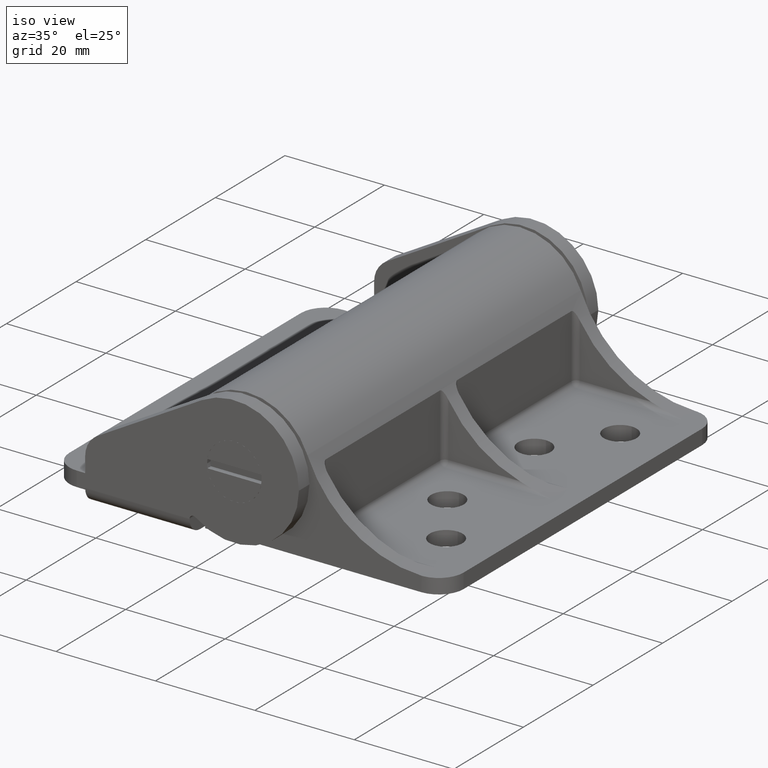
[diagram: clean part render]
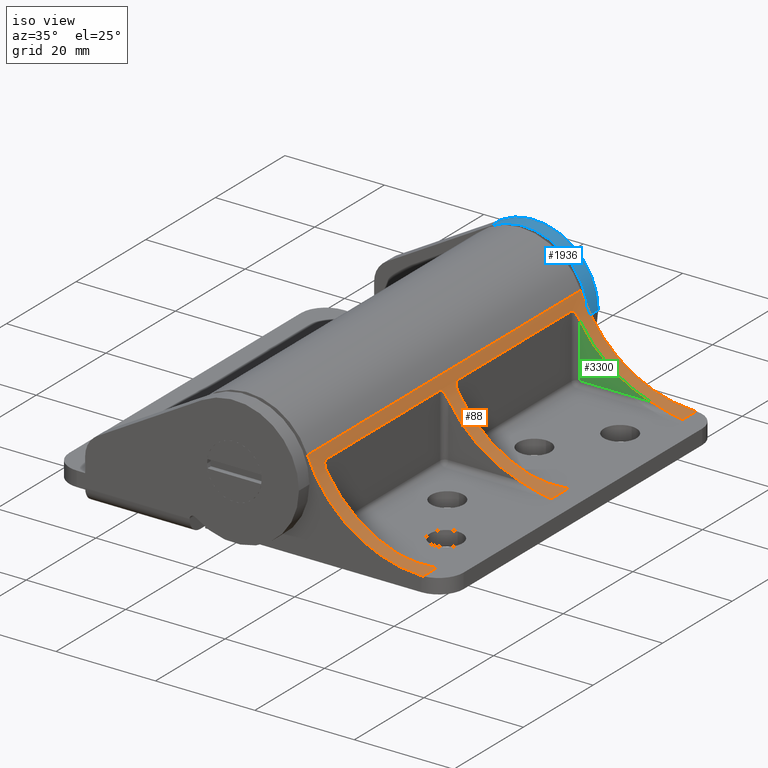
[diagram: same view with three faces highlighted in distinct colors, each labeled with its STEP entity id]
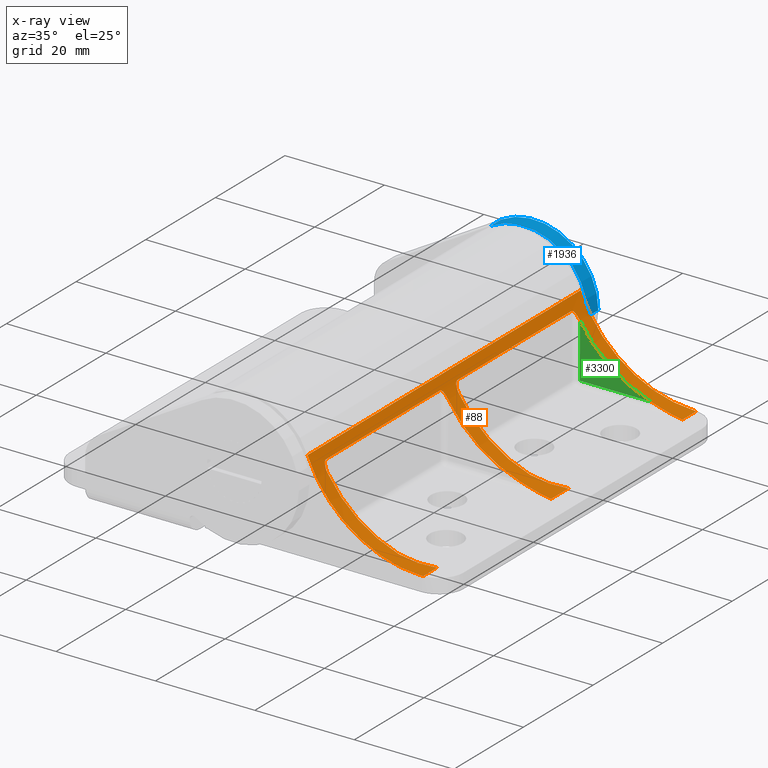
[diagram: x-ray of the same camera — body ghosted, the three highlighted faces saturated]
A machine part, iso view with three faces highlighted in distinct colors.
The next image is the same camera in x-ray (body ghosted, the three faces saturated) — at least one of them is partly hidden behind the body in this view.
Their STEP definitions:

[orange] entity #88 — the highlighted cylindrical surface (partial cylindrical patch) has radius 25 mm, axis along (0, 1, 0).
#88 = ADVANCED_FACE ( 'NONE', ( #2653 ), #1771, .F. ) ;
#92 = EDGE_CURVE ( 'NONE', #1486, #2445, #1863, .T. ) ;
#118 = LINE ( 'NONE', #2597, #3122 ) ;
#120 = VERTEX_POINT ( 'NONE', #2201 ) ;
#148 = CARTESIAN_POINT ( 'NONE',  ( 35.21814119484630400, 11.00000000000000000, 82.24643123524906200 ) ) ;
#151 = CARTESIAN_POINT ( 'NONE',  ( 12.99999999999999500, -2.752639040685594300, 78.30148547019008700 ) ) ;
#164 = CARTESIAN_POINT ( 'NONE',  ( 13.00416145184955000, -2.744369760921881300, 78.35354242055508700 ) ) ;
#180 = CARTESIAN_POINT ( 'NONE',  ( 13.01911376466994600, -2.714764249779078500, 78.45069290016549200 ) ) ;
#193 = CARTESIAN_POINT ( 'NONE',  ( 13.02980465692673900, -2.693631460906329900, 78.49648111798238400 ) ) ;
#200 = CARTESIAN_POINT ( 'NONE',  ( 13.06897118857324900, -2.616611433903037700, 78.62591639132229200 ) ) ;
#207 = CARTESIAN_POINT ( 'NONE',  ( 13.79022415671148000, -1.303302713814966200, 44.51648601581624800 ) ) ;
#214 = CARTESIAN_POINT ( 'NONE',  ( 13.10333938966908300, -2.549518011633630500, 78.69869715479623600 ) ) ;
#230 = CARTESIAN_POINT ( 'NONE',  ( 31.23414710852480200, 10.66972483356650900, 44.74684883297830900 ) ) ;
#232 = ORIENTED_EDGE ( 'NONE', *, *, #1478, .F. ) ;
#235 = B_SPLINE_CURVE_WITH_KNOTS ( 'NONE', 3,
 ( #2580, #3777, #2883, #1093, #3195, #1393, #3487, #1697 ),
 .UNSPECIFIED., .F., .F.,
 ( 4, 2, 2, 4 ),
 ( 0.0000000000000000000, 0.001797253634122010900, 0.003594507268244021900, 0.007189014536488068900 ),
 .UNSPECIFIED. ) ;
#241 = DIRECTION ( 'NONE',  ( 0.0000000000000000000, 0.0000000000000000000, 1.000000000000000000 ) ) ;
#247 = CARTESIAN_POINT ( 'NONE',  ( 33.86124982922083900, 10.95871239007347200, 45.20946450001608200 ) ) ;
#278 = CARTESIAN_POINT ( 'NONE',  ( 35.03471540923575800, 10.99999999999999800, 7.691534638846091500 ) ) ;
#280 = CARTESIAN_POINT ( 'NONE',  ( 13.06915791395835800, -2.616247208926815400, 7.373749517804936800 ) ) ;
#284 = ORIENTED_EDGE ( 'NONE', *, *, #570, .T. ) ;
#333 = B_SPLINE_CURVE_WITH_KNOTS ( 'NONE', 3,
 ( #541, #1939, #3741, #3263, #247, #1643, #1768, #230, #593, #463, #608, #3797 ),
 .UNSPECIFIED., .F., .F.,
 ( 4, 2, 2, 2, 2, 4 ),
 ( -3.162278256141180700E-005, 0.0008627288843650164400, 0.001757080551291444800, 0.003545783885144298400, 0.005334487218997151700, 0.007123190552850005100 ),
 .UNSPECIFIED. ) ;
#344 = CARTESIAN_POINT ( 'NONE',  ( 13.48871616763280600, -1.829349646153068500, 41.36724272160788700 ) ) ;
#444 = CARTESIAN_POINT ( 'NONE',  ( 13.21534665682276500, -2.333847621722291400, 78.88689612842732400 ) ) ;
#448 = B_SPLINE_CURVE_WITH_KNOTS ( 'NONE', 3,
 ( #766, #1385, #755, #777, #487, #467, #444, #214, #200, #193, #180, #164, #151, #1686 ),
 .UNSPECIFIED., .F., .F.,
 ( 4, 2, 2, 2, 2, 2, 4 ),
 ( 1.020821111656669100E-017, 0.0006117924539107866700, 0.001223584907821563100, 0.001835377361732339400, 0.002141273588687715300, 0.002294221702165402100, 0.002447169815643088600 ),
 .UNSPECIFIED. ) ;
#463 = CARTESIAN_POINT ( 'NONE',  ( 29.48324796470684800, 10.31473085671303400, 44.54057233073650200 ) ) ;
#467 = CARTESIAN_POINT ( 'NONE',  ( 13.30333147849510300, -2.168121468107721200, 78.97674940788115800 ) ) ;
#487 = CARTESIAN_POINT ( 'NONE',  ( 13.48860911120642200, -1.829542973002575600, 79.11717419793855300 ) ) ;
#494 = B_SPLINE_CURVE_WITH_KNOTS ( 'NONE', 3,
 ( #1826, #1218, #3006, #2116, #344, #2417, #645, #2722, #940, #3026, #1231, #3340 ),
 .UNSPECIFIED., .F., .F.,
 ( 4, 2, 2, 2, 2, 4 ),
 ( 1.020821111656669100E-017, 0.0006116877171230093900, 0.001223375434246008600, 0.001835063151369007900, 0.002140907009930508300, 0.002446750868492008500 ),
 .UNSPECIFIED. ) ;
#495 = VERTEX_POINT ( 'NONE', #1814 ) ;
#516 = CARTESIAN_POINT ( 'NONE',  ( 14.00000000000000000, -0.9555676417443239600, 44.50000000000000000 ) ) ;
#518 = CARTESIAN_POINT ( 'NONE',  ( 30.64993275112991000, 10.56584423403366400, 41.33628735988499900 ) ) ;
#541 = CARTESIAN_POINT ( 'NONE',  ( 35.32704350000000200, 11.00000000000000000, 45.50000000000000000 ) ) ;
#553 = CARTESIAN_POINT ( 'NONE',  ( 35.32704350000000200, 11.00000000000000000, -917.7500000000000000 ) ) ;
#570 = EDGE_CURVE ( 'NONE', #2738, #1322, #1479, .T. ) ;
#577 = CARTESIAN_POINT ( 'NONE',  ( 13.17853666059816900, -2.404730378601544600, 7.175044420196704700 ) ) ;
#593 = CARTESIAN_POINT ( 'NONE',  ( 30.64998219383678400, 10.56585395281621200, 44.66371878605460900 ) ) ;
#597 = CIRCLE ( 'NONE', #1995, 25.00000000000000000 ) ;
#605 = CARTESIAN_POINT ( 'NONE',  ( 35.32704350000000200, 11.00000000000000000, 7.750000000000000000 ) ) ;
#608 = CARTESIAN_POINT ( 'NONE',  ( 28.90374918756621300, 10.16820582554014700, 44.49999999999999300 ) ) ;
#615 = AXIS2_PLACEMENT_3D ( 'NONE', #1922, #3716, #1617 ) ;
#627 = EDGE_CURVE ( 'NONE', #1322, #120, #1418, .T. ) ;
#645 = CARTESIAN_POINT ( 'NONE',  ( 13.21557542212312700, -2.333425051034602000, 41.13695356058123300 ) ) ;
#673 = CARTESIAN_POINT ( 'NONE',  ( 35.32704350000000200, 11.00000000000000000, 3.760707209522820000 ) ) ;
#700 = VECTOR ( 'NONE', #241, 1000.000000000000000 ) ;
#717 = VECTOR ( 'NONE', #3143, 1000.000000000000000 ) ;
#755 = CARTESIAN_POINT ( 'NONE',  ( 13.78856304144120800, -1.306128199830202100, 79.23313504731268600 ) ) ;
#766 = CARTESIAN_POINT ( 'NONE',  ( 14.00000000000000000, -0.9555676417443239600, 79.25000000000000000 ) ) ;
#777 = CARTESIAN_POINT ( 'NONE',  ( 13.58694675402880100, -1.654607530796052400, 79.16686810648630500 ) ) ;
#788 = CARTESIAN_POINT ( 'NONE',  ( 13.00000000000000000, -2.752639040685680000, 45.50000000000000000 ) ) ;
#795 = VERTEX_POINT ( 'NONE', #848 ) ;
#802 = CARTESIAN_POINT ( 'NONE',  ( 13.01730376315634200, -2.718208871022964200, 45.29432801110989700 ) ) ;
#812 = AXIS2_PLACEMENT_3D ( 'NONE', #3729, #1040, #2531 ) ;
#832 = CARTESIAN_POINT ( 'NONE',  ( 13.00000000000000000, -2.752639040685680000, 45.50000000000000000 ) ) ;
#848 = CARTESIAN_POINT ( 'NONE',  ( 28.32704349999999800, 10.00000000000000000, 79.25000000000000000 ) ) ;
#872 = CARTESIAN_POINT ( 'NONE',  ( 13.30550304683896500, -2.165303388886262900, 7.027719999808277300 ) ) ;
#874 = B_SPLINE_CURVE_WITH_KNOTS ( 'NONE', 3,
 ( #788, #3775, #802, #2880, #1090, #3192, #1391, #3480, #1694, #3786, #1987, #207, #2289, #516 ),
 .UNSPECIFIED., .F., .F.,
 ( 4, 2, 2, 2, 2, 2, 4 ),
 ( 0.002447169815643105900, 0.002753971122191158300, 0.003060772428739210600, 0.003367573735287262500, 0.003674375041835315300, 0.004287977654931421700, 0.004901580268027529000 ),
 .UNSPECIFIED. ) ;
#908 = EDGE_CURVE ( 'NONE', #2211, #3024, #2312, .T. ) ;
#940 = CARTESIAN_POINT ( 'NONE',  ( 13.06944699228462900, -2.615680689699625200, 40.87702143906814500 ) ) ;
#978 = CARTESIAN_POINT ( 'NONE',  ( 13.00000000000000000, -2.752639040685689800, -917.7500000000000000 ) ) ;
#987 = ORIENTED_EDGE ( 'NONE', *, *, #1227, .T. ) ;
#1005 = CARTESIAN_POINT ( 'NONE',  ( 28.32704349999999800, 10.00000000000000000, 41.50000000000000000 ) ) ;
#1006 = CARTESIAN_POINT ( 'NONE',  ( 30.64998219383677700, 10.56585395281621100, 6.913718786054607400 ) ) ;
#1011 = VERTEX_POINT ( 'NONE', #2650 ) ;
#1030 = EDGE_CURVE ( 'NONE', #3204, #3437, #2236, .T. ) ;
#1037 = EDGE_CURVE ( 'NONE', #2592, #795, #3247, .T. ) ;
#1040 = DIRECTION ( 'NONE',  ( 0.0000000000000000000, 0.0000000000000000000, 1.000000000000000000 ) ) ;
#1053 = CARTESIAN_POINT ( 'NONE',  ( 35.10912667485909100, 10.99928844840951400, 82.25000000000000000 ) ) ;
#1090 = CARTESIAN_POINT ( 'NONE',  ( 13.10395139511488200, -2.548328410436229200, 45.05007062521804800 ) ) ;
#1092 = CARTESIAN_POINT ( 'NONE',  ( 35.32704350000000200, -14.00000000000000000, 79.25000000000000000 ) ) ;
#1093 = CARTESIAN_POINT ( 'NONE',  ( 30.64993275112993100, 10.56584423403367100, 79.08628735988502000 ) ) ;
#1172 = CARTESIAN_POINT ( 'NONE',  ( 13.48908326613625900, -1.828694022088327900, 6.882562123978167400 ) ) ;
#1178 = CARTESIAN_POINT ( 'NONE',  ( 35.32704350000000200, 11.00000000000000000, 3.760707209522820000 ) ) ;
#1196 = ORIENTED_EDGE ( 'NONE', *, *, #2490, .F. ) ;
#1206 = ORIENTED_EDGE ( 'NONE', *, *, #908, .T. ) ;
#1218 = CARTESIAN_POINT ( 'NONE',  ( 13.89260106845530500, -1.131159926789804000, 41.50000000000000700 ) ) ;
#1227 = EDGE_CURVE ( 'NONE', #3024, #2738, #2930, .T. ) ;
#1231 = CARTESIAN_POINT ( 'NONE',  ( 13.00000000000000500, -2.752639040685695500, 40.60495805152680800 ) ) ;
#1254 = DIRECTION ( 'NONE',  ( 0.0000000000000000000, 0.0000000000000000000, 1.000000000000000000 ) ) ;
#1262 = DIRECTION ( 'NONE',  ( -1.000000000000000000, 0.0000000000000000000, 0.0000000000000000000 ) ) ;
#1310 = AXIS2_PLACEMENT_3D ( 'NONE', #1092, #2578, #1392 ) ;
#1315 = CARTESIAN_POINT ( 'NONE',  ( 33.86124982922083100, 10.95871239007346900, 7.459464500016070900 ) ) ;
#1322 = VERTEX_POINT ( 'NONE', #1648 ) ;
#1380 = VERTEX_POINT ( 'NONE', #3733 ) ;
#1385 = CARTESIAN_POINT ( 'NONE',  ( 13.89258267897520800, -1.131189992739108900, 79.24999999999997200 ) ) ;
#1391 = CARTESIAN_POINT ( 'NONE',  ( 13.22023536899904500, -2.325351245723337600, 44.87069597909223300 ) ) ;
#1392 = DIRECTION ( 'NONE',  ( -1.000000000000000000, 0.0000000000000000000, 0.0000000000000000000 ) ) ;
#1393 = CARTESIAN_POINT ( 'NONE',  ( 32.98406296018481500, 10.91784263567268300, 78.71971776610071500 ) ) ;
#1418 = B_SPLINE_CURVE_WITH_KNOTS ( 'NONE', 3,
 ( #605, #278, #2943, #3563, #1315, #3228, #3687, #3669, #1006, #2817, #2795, #2240 ),
 .UNSPECIFIED., .F., .F.,
 ( 4, 2, 2, 2, 2, 4 ),
 ( -3.162278256141299300E-005, 0.0008627288843650240300, 0.001757080551291460900, 0.003545783885144335700, 0.005334487218997210700, 0.007123190552850086600 ),
 .UNSPECIFIED. ) ;
#1438 = ORIENTED_EDGE ( 'NONE', *, *, #3619, .T. ) ;
#1451 = CARTESIAN_POINT ( 'NONE',  ( 35.32704350000000200, -14.00000000000000000, 82.25000000000000000 ) ) ;
#1463 = CARTESIAN_POINT ( 'NONE',  ( 13.78859564991382000, -1.306077830729888600, 6.766876177723005100 ) ) ;
#1471 = LINE ( 'NONE', #2718, #2174 ) ;
#1478 = EDGE_CURVE ( 'NONE', #2592, #2044, #448, .T. ) ;
#1479 = LINE ( 'NONE', #553, #700 ) ;
#1486 = VERTEX_POINT ( 'NONE', #1699 ) ;
#1506 = CARTESIAN_POINT ( 'NONE',  ( 35.32704350000000200, -14.00000000000000000, 41.50000000000000000 ) ) ;
#1534 = VERTEX_POINT ( 'NONE', #1778 ) ;
#1561 = B_SPLINE_CURVE_WITH_KNOTS ( 'NONE', 3,
 ( #2647, #1762, #2054, #280, #2347, #577, #2662, #872, #2957, #1172, #3277, #1463, #3564, #1776 ),
 .UNSPECIFIED., .F., .F.,
 ( 4, 2, 2, 2, 2, 2, 4 ),
 ( 8.673617379884035500E-019, 0.0003090827775718969700, 0.0006181655551437930800, 0.0009272483327156891800, 0.001236331110287585300, 0.001854496665431377500, 0.002472662220575169700 ),
 .UNSPECIFIED. ) ;
#1601 = ORIENTED_EDGE ( 'NONE', *, *, #1037, .T. ) ;
#1617 = DIRECTION ( 'NONE',  ( 1.000000000000000000, 0.0000000000000000000, 0.0000000000000000000 ) ) ;
#1619 = VECTOR ( 'NONE', #3098, 1000.000000000000000 ) ;
#1643 = CARTESIAN_POINT ( 'NONE',  ( 32.98429201528154000, 10.89688768709176800, 45.04201116687473700 ) ) ;
#1648 = CARTESIAN_POINT ( 'NONE',  ( 35.32704350000000200, 11.00000000000000000, 7.750000000000000000 ) ) ;
#1659 = DIRECTION ( 'NONE',  ( 1.000000000000000000, 9.020562075079396900E-016, 0.0000000000000000000 ) ) ;
#1675 = DIRECTION ( 'NONE',  ( -0.0000000000000000000, -0.0000000000000000000, -1.000000000000000000 ) ) ;
#1686 = CARTESIAN_POINT ( 'NONE',  ( 13.00000000000000000, -2.752639040685705300, 78.25000000000000000 ) ) ;
#1688 = CARTESIAN_POINT ( 'NONE',  ( 35.32704350000000200, -14.00000000000000000, 3.750000000000000000 ) ) ;
#1694 = CARTESIAN_POINT ( 'NONE',  ( 13.35110094599012400, -2.080806471750678500, 44.73693344158564900 ) ) ;
#1697 = CARTESIAN_POINT ( 'NONE',  ( 35.32704350000000200, 11.00000000000000000, 78.25000000000000000 ) ) ;
#1699 = CARTESIAN_POINT ( 'NONE',  ( 28.32704349999999800, 10.00000000000000000, 44.50000000000000000 ) ) ;
#1700 = VERTEX_POINT ( 'NONE', #832 ) ;
#1754 = EDGE_CURVE ( 'NONE', #1852, #1486, #333, .T. ) ;
#1757 = DIRECTION ( 'NONE',  ( 1.000000000000000000, 9.020562075079396900E-016, 0.0000000000000000000 ) ) ;
#1762 = CARTESIAN_POINT ( 'NONE',  ( 13.00000000000000000, -2.752639040685700900, 7.645296733134236100 ) ) ;
#1766 = CARTESIAN_POINT ( 'NONE',  ( 35.32704350000000200, 11.00000000000000000, 40.50000000000000000 ) ) ;
#1768 = CARTESIAN_POINT ( 'NONE',  ( 32.40082339440695600, 10.83514365025621900, 44.93581641594376900 ) ) ;
#1771 = CYLINDRICAL_SURFACE ( 'NONE', #812, 25.00000000000000000 ) ;
#1776 = CARTESIAN_POINT ( 'NONE',  ( 14.00000000000000000, -0.9555676417443239600, 6.750000000000000000 ) ) ;
#1778 = CARTESIAN_POINT ( 'NONE',  ( 14.00000000000000000, -0.9555676417443239600, 6.750000000000000000 ) ) ;
#1782 = CARTESIAN_POINT ( 'NONE',  ( 35.21814119484630400, 11.00000000000000000, 3.753568764750960400 ) ) ;
#1814 = CARTESIAN_POINT ( 'NONE',  ( 35.00000000000000000, 10.99786075945515900, 82.25000000000000000 ) ) ;
#1820 = EDGE_CURVE ( 'NONE', #3809, #2915, #3188, .T. ) ;
#1826 = CARTESIAN_POINT ( 'NONE',  ( 14.00000000000000000, -0.9555676417443239600, 41.50000000000000000 ) ) ;
#1852 = VERTEX_POINT ( 'NONE', #2147 ) ;
#1863 = CIRCLE ( 'NONE', #615, 25.00000000000000000 ) ;
#1884 = EDGE_CURVE ( 'NONE', #2648, #3204, #2104, .T. ) ;
#1901 = ORIENTED_EDGE ( 'NONE', *, *, #3028, .T. ) ;
#1902 = LINE ( 'NONE', #978, #3406 ) ;
#1906 = CARTESIAN_POINT ( 'NONE',  ( 13.00000000000000000, -2.752639040685689800, -917.7500000000000000 ) ) ;
#1922 = CARTESIAN_POINT ( 'NONE',  ( 35.32704350000000200, -14.00000000000000000, 44.50000000000000000 ) ) ;
#1939 = CARTESIAN_POINT ( 'NONE',  ( 35.03471540923247600, 11.00000000000000000, 45.44153463886250700 ) ) ;
#1987 = CARTESIAN_POINT ( 'NONE',  ( 13.58810227202471300, -1.652565299257452400, 44.58258737571299700 ) ) ;
#1991 = ORIENTED_EDGE ( 'NONE', *, *, #3568, .F. ) ;
#1995 = AXIS2_PLACEMENT_3D ( 'NONE', #3049, #1254, #3353 ) ;
#2014 = CARTESIAN_POINT ( 'NONE',  ( 13.00000000000000000, -2.752639040685705300, 78.25000000000000000 ) ) ;
#2044 = VERTEX_POINT ( 'NONE', #2014 ) ;
#2054 = CARTESIAN_POINT ( 'NONE',  ( 13.01709029644028000, -2.718631003971106400, 7.545256430756651000 ) ) ;
#2067 = CARTESIAN_POINT ( 'NONE',  ( 35.00000000000000000, 10.99786075945515900, 3.750000000000000000 ) ) ;
#2083 = AXIS2_PLACEMENT_3D ( 'NONE', #1506, #2723, #1262 ) ;
#2104 = CIRCLE ( 'NONE', #2083, 25.00000000000000000 ) ;
#2116 = CARTESIAN_POINT ( 'NONE',  ( 13.58701467613742000, -1.654488470678127500, 41.41689651579471100 ) ) ;
#2147 = CARTESIAN_POINT ( 'NONE',  ( 35.32704350000000200, 11.00000000000000000, 45.50000000000000000 ) ) ;
#2174 = VECTOR ( 'NONE', #3014, 1000.000000000000000 ) ;
#2186 = CARTESIAN_POINT ( 'NONE',  ( 13.00000000000000000, -2.752639040685680000, 40.50000000000000000 ) ) ;
#2194 = EDGE_LOOP ( 'NONE', ( #3267, #2384, #2807, #1991, #1206, #987, #284, #2517, #1438, #2424, #3419, #2800, #3500, #3180, #2474, #3742, #3039, #1196, #2974, #232, #1601, #1901 ) ) ;
#2201 = CARTESIAN_POINT ( 'NONE',  ( 28.32704349999999800, 10.00000000000000000, 6.750000000000000000 ) ) ;
#2211 = VERTEX_POINT ( 'NONE', #2986 ) ;
#2230 = CARTESIAN_POINT ( 'NONE',  ( 35.32704350000000200, 11.00000000000000000, 82.23929279047729300 ) ) ;
#2236 = B_SPLINE_CURVE_WITH_KNOTS ( 'NONE', 3,
 ( #2291, #3260, #2946, #518, #3236, #2919, #2632, #1766 ),
 .UNSPECIFIED., .F., .F.,
 ( 4, 2, 2, 4 ),
 ( 0.0000000000000000000, 0.001797253634122001600, 0.003594507268244003200, 0.007189014536488009900 ),
 .UNSPECIFIED. ) ;
#2240 = CARTESIAN_POINT ( 'NONE',  ( 28.32704349999999800, 10.00000000000000000, 6.750000000000000000 ) ) ;
#2248 = CARTESIAN_POINT ( 'NONE',  ( 14.00000000000000000, -0.9555676417443239600, 44.50000000000000000 ) ) ;
#2251 = B_SPLINE_CURVE_WITH_KNOTS ( 'NONE', 3,
 ( #2230, #148, #1053, #3145 ),
 .UNSPECIFIED., .F., .F.,
 ( 4, 4 ),
 ( 6.938893903907228400E-018, 0.0003272257196158692200 ),
 .UNSPECIFIED. ) ;
#2271 = EDGE_CURVE ( 'NONE', #2648, #3194, #494, .T. ) ;
#2289 = CARTESIAN_POINT ( 'NONE',  ( 13.89381907090108100, -1.129168549132972800, 44.49999999999999300 ) ) ;
#2291 = CARTESIAN_POINT ( 'NONE',  ( 28.32704349999999800, 10.00000000000000000, 41.50000000000000000 ) ) ;
#2312 = CIRCLE ( 'NONE', #2376, 25.00000000000000000 ) ;
#2347 = CARTESIAN_POINT ( 'NONE',  ( 13.10346015427217200, -2.549280542977033100, 7.301009753167759800 ) ) ;
#2376 = AXIS2_PLACEMENT_3D ( 'NONE', #1688, #1675, #1659 ) ;
#2384 = ORIENTED_EDGE ( 'NONE', *, *, #2886, .T. ) ;
#2417 = CARTESIAN_POINT ( 'NONE',  ( 13.30336219868467900, -2.168063022087028700, 41.22678529787035700 ) ) ;
#2424 = ORIENTED_EDGE ( 'NONE', *, *, #2600, .F. ) ;
#2445 = VERTEX_POINT ( 'NONE', #2248 ) ;
#2474 = ORIENTED_EDGE ( 'NONE', *, *, #3713, .T. ) ;
#2490 = EDGE_CURVE ( 'NONE', #1700, #2445, #874, .T. ) ;
#2517 = ORIENTED_EDGE ( 'NONE', *, *, #627, .T. ) ;
#2531 = DIRECTION ( 'NONE',  ( 1.000000000000000000, 0.0000000000000000000, 0.0000000000000000000 ) ) ;
#2578 = DIRECTION ( 'NONE',  ( 0.0000000000000000000, 0.0000000000000000000, -1.000000000000000000 ) ) ;
#2580 = CARTESIAN_POINT ( 'NONE',  ( 28.32704349999999800, 10.00000000000000000, 79.25000000000000000 ) ) ;
#2592 = VERTEX_POINT ( 'NONE', #2944 ) ;
#2597 = CARTESIAN_POINT ( 'NONE',  ( 35.32704350000000200, 11.00000000000000000, -917.7500000000000000 ) ) ;
#2600 = EDGE_CURVE ( 'NONE', #1011, #1534, #1561, .T. ) ;
#2632 = CARTESIAN_POINT ( 'NONE',  ( 34.15214162882099900, 11.00000000000000200, 40.73497934132634400 ) ) ;
#2641 = CARTESIAN_POINT ( 'NONE',  ( 35.32704350000000200, 11.00000000000000000, 78.25000000000000000 ) ) ;
#2647 = CARTESIAN_POINT ( 'NONE',  ( 13.00000000000000000, -2.752639040685705300, 7.750000000000000000 ) ) ;
#2648 = VERTEX_POINT ( 'NONE', #2685 ) ;
#2650 = CARTESIAN_POINT ( 'NONE',  ( 13.00000000000000000, -2.752639040685705300, 7.750000000000000000 ) ) ;
#2653 = FACE_OUTER_BOUND ( 'NONE', #2194, .T. ) ;
#2662 = CARTESIAN_POINT ( 'NONE',  ( 13.21989621879006900, -2.325997820190058600, 7.121149853169387500 ) ) ;
#2677 = CARTESIAN_POINT ( 'NONE',  ( 35.10912667485909100, 10.99928844840953500, 3.750000000000000000 ) ) ;
#2685 = CARTESIAN_POINT ( 'NONE',  ( 14.00000000000000000, -0.9555676417443239600, 41.50000000000000000 ) ) ;
#2718 = CARTESIAN_POINT ( 'NONE',  ( 12.08556750290151900, -4.789473680145959200, -917.7500000000000000 ) ) ;
#2722 = CARTESIAN_POINT ( 'NONE',  ( 13.10410688341037400, -2.548031346762296600, 40.95014826760297000 ) ) ;
#2723 = DIRECTION ( 'NONE',  ( 0.0000000000000000000, 0.0000000000000000000, -1.000000000000000000 ) ) ;
#2738 = VERTEX_POINT ( 'NONE', #673 ) ;
#2795 = CARTESIAN_POINT ( 'NONE',  ( 28.90374918756622700, 10.16820582554014900, 6.750000000000001800 ) ) ;
#2800 = ORIENTED_EDGE ( 'NONE', *, *, #2271, .F. ) ;
#2807 = ORIENTED_EDGE ( 'NONE', *, *, #3819, .F. ) ;
#2817 = CARTESIAN_POINT ( 'NONE',  ( 29.48324796470684800, 10.31473085671303400, 6.790572330736502200 ) ) ;
#2880 = CARTESIAN_POINT ( 'NONE',  ( 13.06937200166873400, -2.615828634637560800, 45.12327146425754200 ) ) ;
#2883 = CARTESIAN_POINT ( 'NONE',  ( 29.48322348409131900, 10.31472466448399500, 79.20942932572336300 ) ) ;
#2886 = EDGE_CURVE ( 'NONE', #2915, #495, #2251, .T. ) ;
#2903 = DIRECTION ( 'NONE',  ( 0.0000000000000000000, 0.0000000000000000000, 1.000000000000000000 ) ) ;
#2915 = VERTEX_POINT ( 'NONE', #3154 ) ;
#2919 = CARTESIAN_POINT ( 'NONE',  ( 32.98406296018482900, 10.91784263567267900, 40.96971776610072200 ) ) ;
#2930 = B_SPLINE_CURVE_WITH_KNOTS ( 'NONE', 3,
 ( #2067, #2677, #1782, #1178 ),
 .UNSPECIFIED., .F., .F.,
 ( 4, 4 ),
 ( 0.0000000000000000000, 0.0003272257196158697700 ),
 .UNSPECIFIED. ) ;
#2943 = CARTESIAN_POINT ( 'NONE',  ( 34.73987500713099800, 10.99482334420536100, 7.632566070162059900 ) ) ;
#2944 = CARTESIAN_POINT ( 'NONE',  ( 14.00000000000000000, -0.9555676417443239600, 79.25000000000000000 ) ) ;
#2946 = CARTESIAN_POINT ( 'NONE',  ( 29.48322348409130500, 10.31472466448399000, 41.45942932572339100 ) ) ;
#2948 = CARTESIAN_POINT ( 'NONE',  ( 35.32704350000000200, 11.00000000000000000, -917.7500000000000000 ) ) ;
#2957 = CARTESIAN_POINT ( 'NONE',  ( 13.35019689269766900, -2.082470377840684800, 6.987683126144347100 ) ) ;
#2974 = ORIENTED_EDGE ( 'NONE', *, *, #3660, .T. ) ;
#2986 = CARTESIAN_POINT ( 'NONE',  ( 12.08556750290151900, -4.789473680145959200, 3.750000000000000000 ) ) ;
#3006 = CARTESIAN_POINT ( 'NONE',  ( 13.78859866797136400, -1.306068284386677300, 41.48314066909008300 ) ) ;
#3014 = DIRECTION ( 'NONE',  ( 0.0000000000000000000, 0.0000000000000000000, 1.000000000000000000 ) ) ;
#3024 = VERTEX_POINT ( 'NONE', #3179 ) ;
#3026 = CARTESIAN_POINT ( 'NONE',  ( 13.01714087771516600, -2.718529641783850700, 40.70509025190538900 ) ) ;
#3028 = EDGE_CURVE ( 'NONE', #795, #3809, #235, .T. ) ;
#3039 = ORIENTED_EDGE ( 'NONE', *, *, #92, .T. ) ;
#3049 = CARTESIAN_POINT ( 'NONE',  ( 35.32704350000000200, -14.00000000000000000, 6.750000000000000000 ) ) ;
#3079 = DIRECTION ( 'NONE',  ( 0.0000000000000000000, 0.0000000000000000000, 1.000000000000000000 ) ) ;
#3098 = DIRECTION ( 'NONE',  ( 0.0000000000000000000, 0.0000000000000000000, 1.000000000000000000 ) ) ;
#3122 = VECTOR ( 'NONE', #2903, 1000.000000000000000 ) ;
#3143 = DIRECTION ( 'NONE',  ( 0.0000000000000000000, 0.0000000000000000000, 1.000000000000000000 ) ) ;
#3145 = CARTESIAN_POINT ( 'NONE',  ( 35.00000000000000000, 10.99786075945515900, 82.25000000000000000 ) ) ;
#3154 = CARTESIAN_POINT ( 'NONE',  ( 35.32704350000000200, 11.00000000000000000, 82.23929279047729300 ) ) ;
#3179 = CARTESIAN_POINT ( 'NONE',  ( 35.00000000000000000, 10.99786075945515900, 3.750000000000000000 ) ) ;
#3180 = ORIENTED_EDGE ( 'NONE', *, *, #1030, .T. ) ;
#3188 = LINE ( 'NONE', #2948, #717 ) ;
#3192 = CARTESIAN_POINT ( 'NONE',  ( 13.17887496775890600, -2.404085393343278200, 44.92459299097480900 ) ) ;
#3194 = VERTEX_POINT ( 'NONE', #2186 ) ;
#3195 = CARTESIAN_POINT ( 'NONE',  ( 31.23408551761526300, 10.66971432365924400, 79.00316013941129300 ) ) ;
#3204 = VERTEX_POINT ( 'NONE', #1005 ) ;
#3228 = CARTESIAN_POINT ( 'NONE',  ( 32.98429201528152500, 10.89688768709177100, 7.292011166874737600 ) ) ;
#3236 = CARTESIAN_POINT ( 'NONE',  ( 31.23408551761524500, 10.66971432365923900, 41.25316013941127800 ) ) ;
#3242 = EDGE_CURVE ( 'NONE', #1011, #3194, #3319, .T. ) ;
#3247 = CIRCLE ( 'NONE', #1310, 25.00000000000000000 ) ;
#3260 = CARTESIAN_POINT ( 'NONE',  ( 28.90373700769831800, 10.16820227307868100, 41.49999999999999300 ) ) ;
#3263 = CARTESIAN_POINT ( 'NONE',  ( 34.15385693524143600, 10.97417854767842400, 45.26667539500456900 ) ) ;
#3265 = CARTESIAN_POINT ( 'NONE',  ( 35.32704350000000200, 11.00000000000000000, 40.50000000000000000 ) ) ;
#3267 = ORIENTED_EDGE ( 'NONE', *, *, #1820, .T. ) ;
#3277 = CARTESIAN_POINT ( 'NONE',  ( 13.58728765549138700, -1.654012325799006000, 6.832997944465719600 ) ) ;
#3319 = LINE ( 'NONE', #1906, #1619 ) ;
#3340 = CARTESIAN_POINT ( 'NONE',  ( 13.00000000000000000, -2.752639040685680000, 40.50000000000000000 ) ) ;
#3353 = DIRECTION ( 'NONE',  ( 1.000000000000000000, 0.0000000000000000000, 0.0000000000000000000 ) ) ;
#3406 = VECTOR ( 'NONE', #3079, 1000.000000000000000 ) ;
#3419 = ORIENTED_EDGE ( 'NONE', *, *, #3242, .T. ) ;
#3437 = VERTEX_POINT ( 'NONE', #3265 ) ;
#3480 = CARTESIAN_POINT ( 'NONE',  ( 13.30637296823906400, -2.163680529477961700, 44.77685549763462800 ) ) ;
#3487 = CARTESIAN_POINT ( 'NONE',  ( 34.15214162880843700, 10.99999999999999500, 78.48497934126362500 ) ) ;
#3500 = ORIENTED_EDGE ( 'NONE', *, *, #1884, .T. ) ;
#3544 = DIRECTION ( 'NONE',  ( -0.0000000000000000000, -0.0000000000000000000, -1.000000000000000000 ) ) ;
#3563 = CARTESIAN_POINT ( 'NONE',  ( 34.15385693524145700, 10.97417854767842500, 7.516675395004576800 ) ) ;
#3564 = CARTESIAN_POINT ( 'NONE',  ( 13.89254537260500100, -1.131250986928690600, 6.750000000000000000 ) ) ;
#3568 = EDGE_CURVE ( 'NONE', #2211, #1380, #1471, .T. ) ;
#3570 = AXIS2_PLACEMENT_3D ( 'NONE', #1451, #3544, #1757 ) ;
#3619 = EDGE_CURVE ( 'NONE', #120, #1534, #597, .T. ) ;
#3660 = EDGE_CURVE ( 'NONE', #1700, #2044, #1902, .T. ) ;
#3669 = CARTESIAN_POINT ( 'NONE',  ( 31.23414710852478700, 10.66972483356650200, 6.996848832978313800 ) ) ;
#3687 = CARTESIAN_POINT ( 'NONE',  ( 32.40082339440696300, 10.83514365025621700, 7.185816415943775400 ) ) ;
#3713 = EDGE_CURVE ( 'NONE', #3437, #1852, #118, .T. ) ;
#3716 = DIRECTION ( 'NONE',  ( 0.0000000000000000000, 0.0000000000000000000, 1.000000000000000000 ) ) ;
#3726 = CIRCLE ( 'NONE', #3570, 25.00000000000000000 ) ;
#3729 = CARTESIAN_POINT ( 'NONE',  ( 35.32704350000000200, -14.00000000000000000, -917.7500000000000000 ) ) ;
#3733 = CARTESIAN_POINT ( 'NONE',  ( 12.08556750290151900, -4.789473680145959200, 82.25000000000000000 ) ) ;
#3741 = CARTESIAN_POINT ( 'NONE',  ( 34.73987500713097600, 10.99482334420536000, 45.38256607016204900 ) ) ;
#3742 = ORIENTED_EDGE ( 'NONE', *, *, #1754, .T. ) ;
#3775 = CARTESIAN_POINT ( 'NONE',  ( 12.99999999999999800, -2.752639040685591600, 45.39672439127620900 ) ) ;
#3777 = CARTESIAN_POINT ( 'NONE',  ( 28.90373700769832500, 10.16820227307868100, 79.25000000000004300 ) ) ;
#3786 = CARTESIAN_POINT ( 'NONE',  ( 13.48945192029689000, -1.828044692733622500, 44.63241549243181100 ) ) ;
#3797 = CARTESIAN_POINT ( 'NONE',  ( 28.32704349999999800, 10.00000000000000000, 44.50000000000000000 ) ) ;
#3809 = VERTEX_POINT ( 'NONE', #2641 ) ;
#3819 = EDGE_CURVE ( 'NONE', #1380, #495, #3726, .T. ) ;

[blue] entity #1936 — the highlighted cylindrical surface (partial cylindrical patch) has radius 13 mm, axis along (0, 1, 0).
#52 = DIRECTION ( 'NONE',  ( 1.000000000000000000, 0.0000000000000000000, 0.0000000000000000000 ) ) ;
#298 = CARTESIAN_POINT ( 'NONE',  ( -6.500000000000000000, -11.25833020000000000, -914.0000000000000000 ) ) ;
#338 = FACE_OUTER_BOUND ( 'NONE', #2495, .T. ) ;
#406 = CARTESIAN_POINT ( 'NONE',  ( 0.0000000000000000000, 0.0000000000000000000, 86.00000000000000000 ) ) ;
#422 = AXIS2_PLACEMENT_3D ( 'NONE', #1273, #3665, #52 ) ;
#439 = AXIS2_PLACEMENT_3D ( 'NONE', #406, #2485, #709 ) ;
#499 = VERTEX_POINT ( 'NONE', #1235 ) ;
#529 = DIRECTION ( 'NONE',  ( 0.0000000000000000000, 0.0000000000000000000, 1.000000000000000000 ) ) ;
#683 = ORIENTED_EDGE ( 'NONE', *, *, #2780, .T. ) ;
#709 = DIRECTION ( 'NONE',  ( 1.000000000000000000, 0.0000000000000000000, 0.0000000000000000000 ) ) ;
#730 = VERTEX_POINT ( 'NONE', #2562 ) ;
#773 = VERTEX_POINT ( 'NONE', #3710 ) ;
#997 = LINE ( 'NONE', #298, #1879 ) ;
#1091 = ORIENTED_EDGE ( 'NONE', *, *, #1703, .F. ) ;
#1140 = VECTOR ( 'NONE', #2361, 1000.000000000000000 ) ;
#1235 = CARTESIAN_POINT ( 'NONE',  ( -6.499999990870000100, -11.25833025446890000, 83.00000000000000000 ) ) ;
#1239 = LINE ( 'NONE', #2955, #1140 ) ;
#1273 = CARTESIAN_POINT ( 'NONE',  ( 0.0000000000000000000, 0.0000000000000000000, -914.0000000000000000 ) ) ;
#1366 = ORIENTED_EDGE ( 'NONE', *, *, #3851, .T. ) ;
#1405 = CIRCLE ( 'NONE', #2029, 13.00000000000000000 ) ;
#1409 = EDGE_CURVE ( 'NONE', #730, #499, #1405, .T. ) ;
#1703 = EDGE_CURVE ( 'NONE', #499, #2284, #997, .T. ) ;
#1838 = CARTESIAN_POINT ( 'NONE',  ( -6.500000000000000000, -11.25833020000000000, 86.00000000000000000 ) ) ;
#1879 = VECTOR ( 'NONE', #529, 1000.000000000000000 ) ;
#1936 = ADVANCED_FACE ( 'NONE', ( #338 ), #3338, .T. ) ;
#2029 = AXIS2_PLACEMENT_3D ( 'NONE', #2541, #2524, #2292 ) ;
#2258 = CIRCLE ( 'NONE', #439, 13.00000000000000000 ) ;
#2284 = VERTEX_POINT ( 'NONE', #1838 ) ;
#2292 = DIRECTION ( 'NONE',  ( 1.000000000000000000, 0.0000000000000000000, 0.0000000000000000000 ) ) ;
#2361 = DIRECTION ( 'NONE',  ( 0.0000000000000000000, 0.0000000000000000000, 1.000000000000000000 ) ) ;
#2485 = DIRECTION ( 'NONE',  ( -0.0000000000000000000, -0.0000000000000000000, -1.000000000000000000 ) ) ;
#2495 = EDGE_LOOP ( 'NONE', ( #3280, #1366, #683, #1091 ) ) ;
#2524 = DIRECTION ( 'NONE',  ( -0.0000000000000000000, -0.0000000000000000000, -1.000000000000000000 ) ) ;
#2541 = CARTESIAN_POINT ( 'NONE',  ( 0.0000000000000000000, 0.0000000000000000000, 83.00000000000000000 ) ) ;
#2562 = CARTESIAN_POINT ( 'NONE',  ( 13.00000000000000000, 0.0000000000000000000, 83.00000000000000000 ) ) ;
#2780 = EDGE_CURVE ( 'NONE', #773, #2284, #2258, .T. ) ;
#2955 = CARTESIAN_POINT ( 'NONE',  ( 13.00000000000000000, 0.0000000000000000000, -914.0000000000000000 ) ) ;
#3280 = ORIENTED_EDGE ( 'NONE', *, *, #1409, .F. ) ;
#3338 = CYLINDRICAL_SURFACE ( 'NONE', #422, 13.00000000000000000 ) ;
#3665 = DIRECTION ( 'NONE',  ( 0.0000000000000000000, 0.0000000000000000000, 1.000000000000000000 ) ) ;
#3710 = CARTESIAN_POINT ( 'NONE',  ( 13.00000000000000000, 0.0000000000000000000, 86.00000000000000000 ) ) ;
#3851 = EDGE_CURVE ( 'NONE', #730, #773, #1239, .T. ) ;

[green] entity #3300 — the highlighted planar face has unit normal (0, -1, -0).
#117 = ORIENTED_EDGE ( 'NONE', *, *, #1037, .F. ) ;
#154 = DIRECTION ( 'NONE',  ( 1.000000000000000000, 0.0000000000000000000, 0.0000000000000000000 ) ) ;
#277 = DIRECTION ( 'NONE',  ( 1.000000000000000000, -0.0000000000000000000, -0.0000000000000000000 ) ) ;
#332 = ORIENTED_EDGE ( 'NONE', *, *, #3833, .T. ) ;
#440 = EDGE_CURVE ( 'NONE', #2161, #2592, #2649, .T. ) ;
#545 = LINE ( 'NONE', #2941, #1332 ) ;
#795 = VERTEX_POINT ( 'NONE', #848 ) ;
#848 = CARTESIAN_POINT ( 'NONE',  ( 28.32704349999999800, 10.00000000000000000, 79.25000000000000000 ) ) ;
#900 = CARTESIAN_POINT ( 'NONE',  ( 14.00000000000000000, 985.9570018245660800, 79.25000000000000000 ) ) ;
#1037 = EDGE_CURVE ( 'NONE', #2592, #795, #3247, .T. ) ;
#1076 = AXIS2_PLACEMENT_3D ( 'NONE', #1341, #1931, #154 ) ;
#1092 = CARTESIAN_POINT ( 'NONE',  ( 35.32704350000000200, -14.00000000000000000, 79.25000000000000000 ) ) ;
#1310 = AXIS2_PLACEMENT_3D ( 'NONE', #1092, #2578, #1392 ) ;
#1332 = VECTOR ( 'NONE', #277, 1000.000000000000000 ) ;
#1341 = CARTESIAN_POINT ( 'NONE',  ( 39.58257569495570700, 985.9570018245660800, 79.25000000000000000 ) ) ;
#1392 = DIRECTION ( 'NONE',  ( -1.000000000000000000, 0.0000000000000000000, 0.0000000000000000000 ) ) ;
#1426 = ORIENTED_EDGE ( 'NONE', *, *, #440, .F. ) ;
#1460 = CARTESIAN_POINT ( 'NONE',  ( 14.00000000000000000, 10.00000000000000000, 79.25000000000000000 ) ) ;
#1859 = VECTOR ( 'NONE', #2587, 1000.000000000000000 ) ;
#1931 = DIRECTION ( 'NONE',  ( 0.0000000000000000000, 0.0000000000000000000, -1.000000000000000000 ) ) ;
#2161 = VERTEX_POINT ( 'NONE', #1460 ) ;
#2223 = PLANE ( 'NONE',  #1076 ) ;
#2409 = FACE_OUTER_BOUND ( 'NONE', #3659, .T. ) ;
#2578 = DIRECTION ( 'NONE',  ( 0.0000000000000000000, 0.0000000000000000000, -1.000000000000000000 ) ) ;
#2587 = DIRECTION ( 'NONE',  ( 0.0000000000000000000, -1.000000000000000000, 0.0000000000000000000 ) ) ;
#2592 = VERTEX_POINT ( 'NONE', #2944 ) ;
#2649 = LINE ( 'NONE', #900, #1859 ) ;
#2941 = CARTESIAN_POINT ( 'NONE',  ( 35.32704350000000200, 10.00000000000000000, 79.25000000000000000 ) ) ;
#2944 = CARTESIAN_POINT ( 'NONE',  ( 14.00000000000000000, -0.9555676417443239600, 79.25000000000000000 ) ) ;
#3247 = CIRCLE ( 'NONE', #1310, 25.00000000000000000 ) ;
#3300 = ADVANCED_FACE ( 'NONE', ( #2409 ), #2223, .T. ) ;
#3659 = EDGE_LOOP ( 'NONE', ( #1426, #332, #117 ) ) ;
#3833 = EDGE_CURVE ( 'NONE', #2161, #795, #545, .T. ) ;